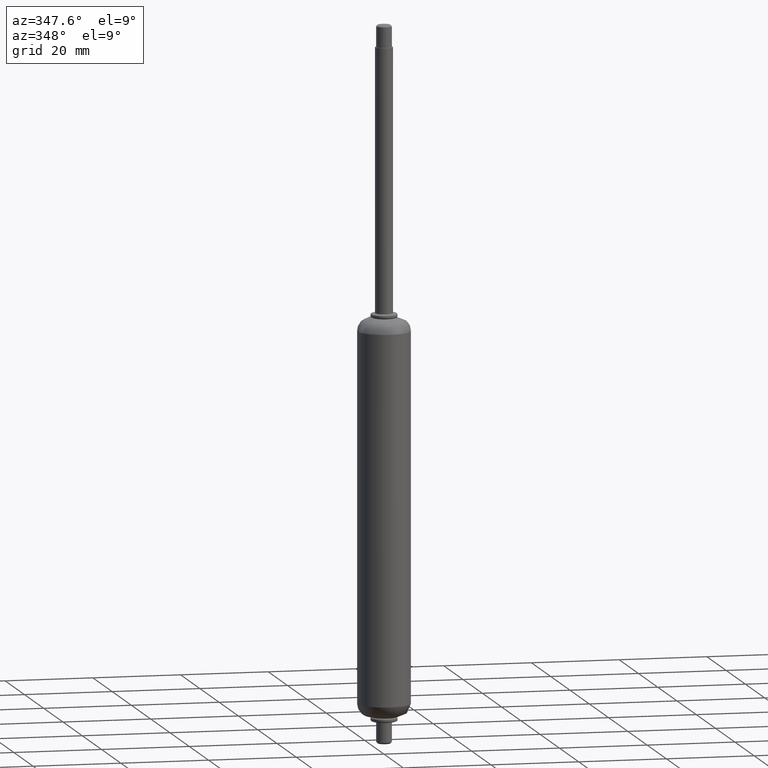
[diagram: clean part render]
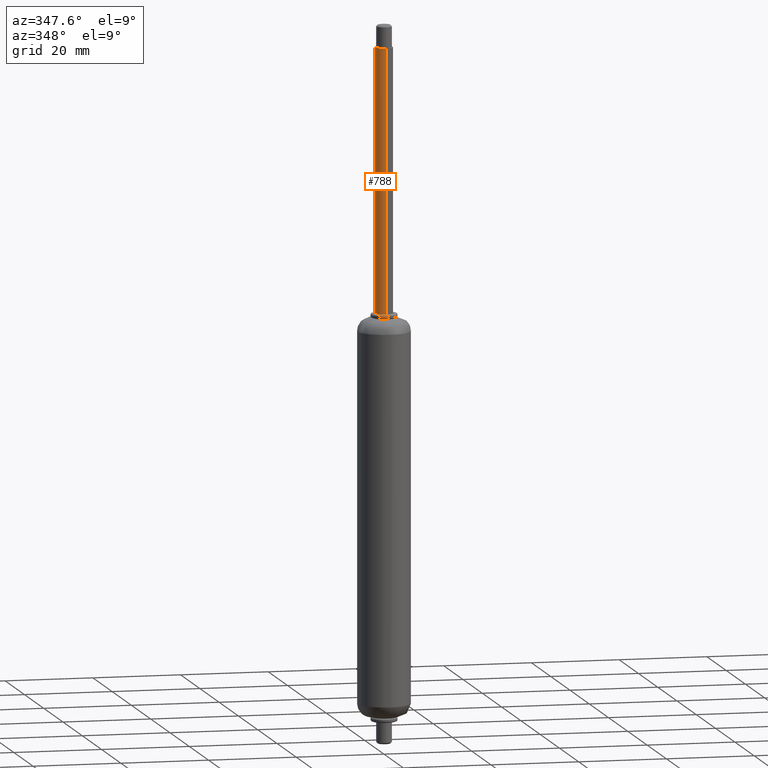
[diagram: same view with one face highlighted and labeled with its STEP entity id]
A machine part, auxiliary view. The second image highlights one B-rep face of the part: STEP entity #788.
In plain terms, the highlighted face is a freeform B-spline surface patch.
Its self-contained STEP definition (entity closure, byte-faithful):
#625=CARTESIAN_POINT('',(-0.236068469799932,1.986019052668841,61.0));
#626=VERTEX_POINT('',#625);
#644=CARTESIAN_POINT('',(0.122097526820486,-1.996269569457389,61.0));
#645=VERTEX_POINT('',#644);
#659=CARTESIAN_POINT('',(0.122097526820486,-1.996269569457389,1.0));
#660=VERTEX_POINT('',#659);
#661=CARTESIAN_POINT('',(0.122097526820486,-1.996269569457389,61.0));
#662=CARTESIAN_POINT('',(0.122097526820486,-1.996269569457389,1.0));
#663=QUASI_UNIFORM_CURVE('',1,(#661,#662),.UNSPECIFIED.,.F.,.U.);
#664=EDGE_CURVE('',#645,#660,#663,.T.);
#681=CARTESIAN_POINT('',(-0.236068469799932,1.986019052668841,1.0));
#682=VERTEX_POINT('',#681);
#698=CARTESIAN_POINT('',(-0.236068469799932,1.986019052668841,61.0));
#699=CARTESIAN_POINT('',(-0.236068469799932,1.986019052668841,1.0));
#700=QUASI_UNIFORM_CURVE('',1,(#698,#699),.UNSPECIFIED.,.F.,.U.);
#701=EDGE_CURVE('',#626,#682,#700,.T.);
#706=CARTESIAN_POINT('',(0.122097079069881,-1.996269596843090,62.500000000000007));
#707=CARTESIAN_POINT('',(-1.874172517773210,-2.118366675912764,62.500000000000007));
#708=CARTESIAN_POINT('',(-1.996269596842884,-0.122097079069675,62.500000000000007));
#709=CARTESIAN_POINT('',(-2.111572393464168,1.763086981678433,62.500000000000007));
#710=CARTESIAN_POINT('',(-0.236068469313235,1.986019052726692,62.500000000000021));
#711=CARTESIAN_POINT('',(0.122097079069881,-1.996269596843090,-0.537500000000001));
#712=CARTESIAN_POINT('',(-1.874172517773210,-2.118366675912764,-0.537500000000001));
#713=CARTESIAN_POINT('',(-1.996269596842884,-0.122097079069675,-0.537500000000001));
#714=CARTESIAN_POINT('',(-2.111572393464168,1.763086981678433,-0.537500000000001));
#715=CARTESIAN_POINT('',(-0.236068469313235,1.986019052726692,-0.537500000000002));
#723=(BOUNDED_SURFACE()B_SPLINE_SURFACE(2,1,((#706,#711),(#707,#712),(#708,#713),(#709,#714),(#710,#715)),.UNSPECIFIED.,.F.,.F.,.U.)B_SPLINE_SURFACE_WITH_KNOTS((3,2,3),(2,2),(0.0,3.313708498983691,6.494868658008034),(0.0,63.037500000000023),.UNSPECIFIED.)GEOMETRIC_REPRESENTATION_ITEM()RATIONAL_B_SPLINE_SURFACE(((1.0,1.0),(0.707106781186548,0.707106781186548),(1.0,1.0),(0.718822509939086,0.718822509939086),(0.977505800795127,0.977505800795127)))REPRESENTATION_ITEM('')SURFACE());
#724=CARTESIAN_POINT('',(-1.999999999999149,0.0,61.0));
#725=VERTEX_POINT('',#724);
#726=CARTESIAN_POINT('',(-1.999999999999149,0.0,61.0));
#727=CARTESIAN_POINT('',(-1.999999999999149,1.776349051025404,61.0));
#728=CARTESIAN_POINT('',(-0.236068469799932,1.986019052668841,61.0));
#736=(BOUNDED_CURVE()B_SPLINE_CURVE(2,(#726,#727,#728),.UNSPECIFIED.,.F.,.U.)B_SPLINE_CURVE_WITH_KNOTS((3,3),(0.0,0.229562473432812),.UNSPECIFIED.)CURVE()GEOMETRIC_REPRESENTATION_ITEM()RATIONAL_B_SPLINE_CURVE((1.0,0.731050832949944,0.956026754025531))REPRESENTATION_ITEM(''));
#737=EDGE_CURVE('',#725,#626,#736,.T.);
#738=ORIENTED_EDGE('',*,*,#737,.T.);
#739=ORIENTED_EDGE('',*,*,#701,.T.);
#740=CARTESIAN_POINT('',(-1.999999999999149,0.0,1.0));
#741=VERTEX_POINT('',#740);
#742=CARTESIAN_POINT('',(-1.999999999999149,0.0,1.0));
#743=CARTESIAN_POINT('',(-1.999999999999149,1.776349051025404,1.0));
#744=CARTESIAN_POINT('',(-0.236068469799932,1.986019052668841,1.0));
#752=(BOUNDED_CURVE()B_SPLINE_CURVE(2,(#742,#743,#744),.UNSPECIFIED.,.F.,.U.)B_SPLINE_CURVE_WITH_KNOTS((3,3),(0.0,0.229562473432812),.UNSPECIFIED.)CURVE()GEOMETRIC_REPRESENTATION_ITEM()RATIONAL_B_SPLINE_CURVE((1.0,0.731050832949944,0.956026754025531))REPRESENTATION_ITEM(''));
#753=EDGE_CURVE('',#741,#682,#752,.T.);
#754=ORIENTED_EDGE('',*,*,#753,.F.);
#755=CARTESIAN_POINT('',(0.122097526820486,-1.996269569457389,1.0));
#756=CARTESIAN_POINT('',(0.061105975603428,-1.999999999999355,1.0));
#757=CARTESIAN_POINT('',(2.060574E-013,-1.999999999999355,1.0));
#758=CARTESIAN_POINT('',(-1.999999999999149,-1.999999999999355,1.0));
#759=CARTESIAN_POINT('',(-1.999999999999149,0.0,1.0));
#767=(BOUNDED_CURVE()B_SPLINE_CURVE(2,(#755,#756,#757,#758,#759),.UNSPECIFIED.,.F.,.U.)B_SPLINE_CURVE_WITH_KNOTS((3,2,3),(0.739332884839673,0.750000000000000,1.0),.UNSPECIFIED.)CURVE()GEOMETRIC_REPRESENTATION_ITEM()RATIONAL_B_SPLINE_CURVE((0.976071875785406,0.987502697220953,1.0,0.707106781186548,1.0))REPRESENTATION_ITEM(''));
#768=EDGE_CURVE('',#660,#741,#767,.T.);
#769=ORIENTED_EDGE('',*,*,#768,.F.);
#770=ORIENTED_EDGE('',*,*,#664,.F.);
#771=CARTESIAN_POINT('',(0.122097526820486,-1.996269569457389,61.000000000000007));
#772=CARTESIAN_POINT('',(0.061105975603428,-1.999999999999355,61.000000000000007));
#773=CARTESIAN_POINT('',(2.060574E-013,-1.999999999999355,61.0));
#774=CARTESIAN_POINT('',(-1.999999999999149,-1.999999999999355,60.999999999999993));
#775=CARTESIAN_POINT('',(-1.999999999999149,0.0,61.0));
#783=(BOUNDED_CURVE()B_SPLINE_CURVE(2,(#771,#772,#773,#774,#775),.UNSPECIFIED.,.F.,.U.)B_SPLINE_CURVE_WITH_KNOTS((3,2,3),(0.739332884839673,0.750000000000000,1.0),.UNSPECIFIED.)CURVE()GEOMETRIC_REPRESENTATION_ITEM()RATIONAL_B_SPLINE_CURVE((0.976071875785406,0.987502697220953,1.0,0.707106781186548,1.0))REPRESENTATION_ITEM(''));
#784=EDGE_CURVE('',#645,#725,#783,.T.);
#785=ORIENTED_EDGE('',*,*,#784,.T.);
#786=EDGE_LOOP('',(#738,#739,#754,#769,#770,#785));
#787=FACE_OUTER_BOUND('',#786,.T.);
#788=ADVANCED_FACE('',(#787),#723,.T.);